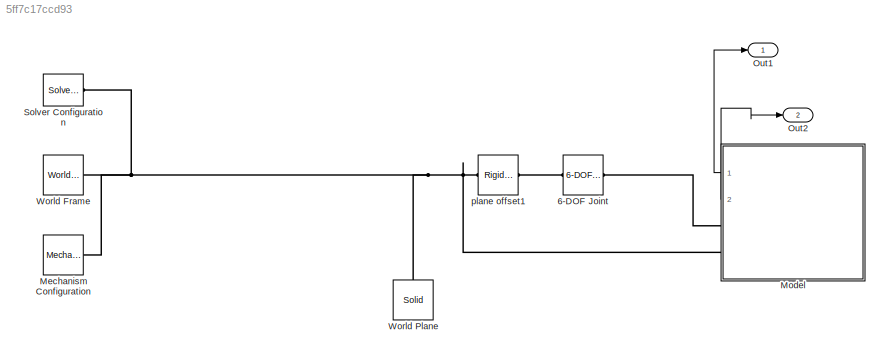
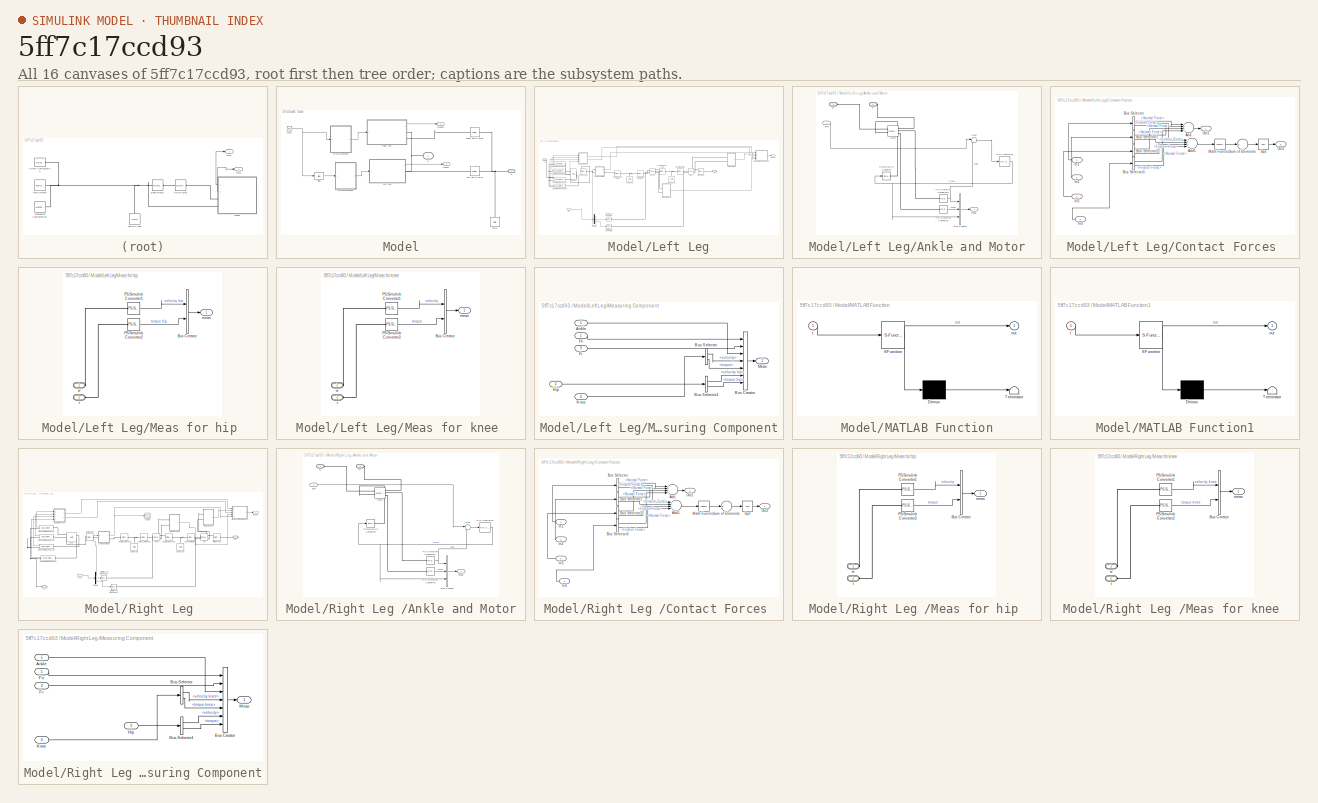
[diagram: thumbnail index - all 16 canvases of the model, root first then tree order]
MODEL slx_5ff7c17ccd93
KIND model
CONFIG AbsTol = auto
CONFIG EnableMultiTasking = on
CONFIG FixedStep = auto
CONFIG MaxStep = auto
CONFIG MinStep = auto
CONFIG RelTol = 1e-3
CONFIG SampleTimeConstraint = Unconstrained
CONFIG Solver = ode15s
CONFIG SolverName = ode15s
CONFIG StartTime = 0.0
CONFIG StopTime = 10.0
BLOCK [Reference] 6-DOF Joint  REF=sm_lib/Joints/6-DOF Joint
  Ports = [0, 0, 0, 0, 0, 1, 1]
  SourceBlock = sm_lib/Joints/6-DOF Joint
  SourceProductBaseCode = MS
  SourceProductName = Simscape Multibody
  SourceType = 6-DOF Joint
BLOCK [Reference] Mechanism Configuration  REF=sm_lib/Utilities/Mechanism
Configuration
  Ports = [0, 0, 0, 0, 0, 0, 1]
  SourceBlock = sm_lib/Utilities/Mechanism\nConfiguration
  SourceProductBaseCode = MS
  SourceProductName = Simscape Multibody
  SourceType = Mechanism\nConfiguration
BLOCK [SubSystem] Model
  Ports = [0, 2, 0, 0, 0, 0, 2]
  RequestExecContextInheritance = off
BLOCK [Bias] Model/Bias
  Bias = -curveData.gaitPeriod/2
  SaturateOnIntegerOverflow = off
BLOCK [Clock] Model/Clock
BLOCK [PMIOPort] Model/G
  Port = 2
  Side = Right
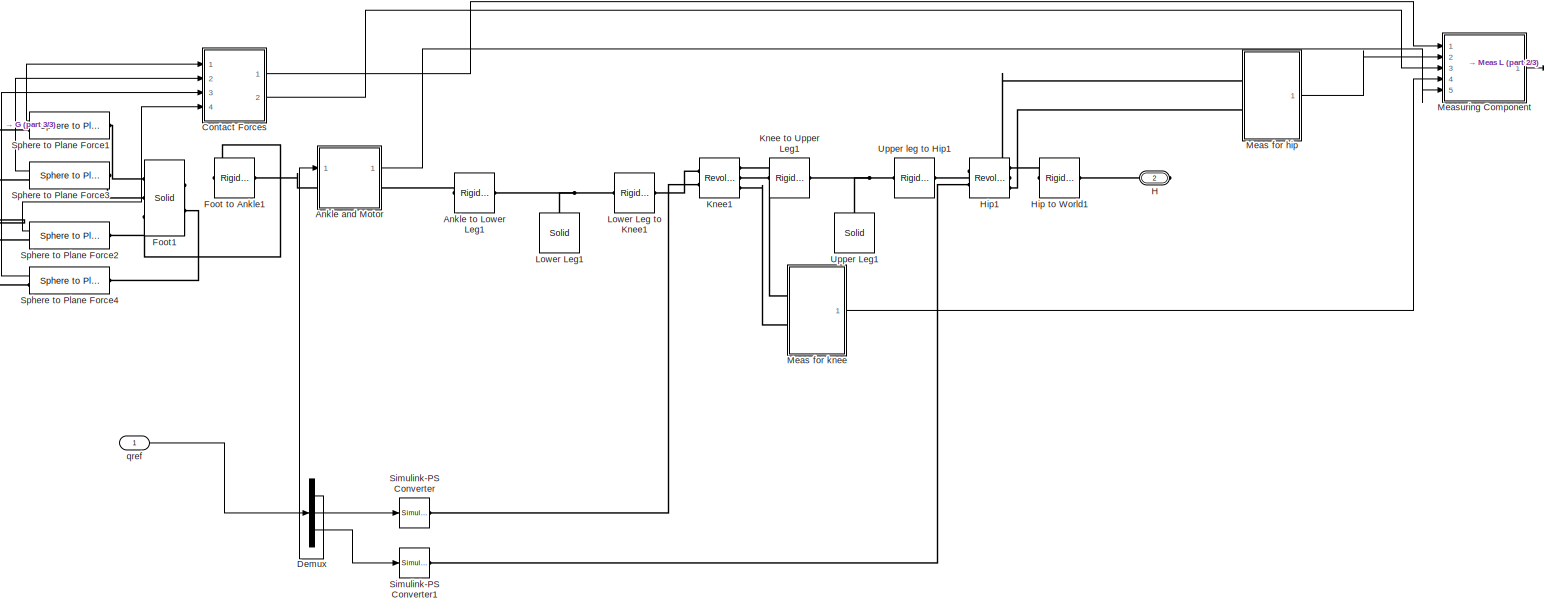
[diagram: Model/Left Leg - part 1/3, most of the canvas]
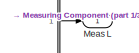
[diagram: Model/Left Leg - part 2/3, top right region]
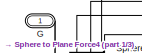
[diagram: Model/Left Leg - part 3/3, top left region]
BLOCK [SubSystem] Model/Left Leg
  Ports = [1, 1, 0, 0, 0, 0, 2]
  RequestExecContextInheritance = off
BLOCK [SubSystem] Model/Left Leg/Ankle and Motor
  Ports = [1, 1, 0, 0, 0, 1, 1]
  RequestExecContextInheritance = off
BLOCK [Reference] Model/Left Leg/Ankle and Motor/Ankle  REF=sm_lib/Joints/Revolute Joint
  Ports = [0, 0, 0, 0, 0, 2, 3]
  SourceBlock = sm_lib/Joints/Revolute Joint
  SourceProductBaseCode = MS
  SourceProductName = Simscape Multibody
  SourceType = Revolute Joint
BLOCK [PMIOPort] Model/Left Leg/Ankle and Motor/B
  Side = Left
BLOCK [BusCreator] Model/Left Leg/Ankle and Motor/Bus Creator
  DisplayOption = bar
  InheritFromInputs = on
  Inputs = 3
  Ports = [3, 1]
BLOCK [PMIOPort] Model/Left Leg/Ankle and Motor/F
  Port = 2
  Side = Right
BLOCK [Reference] Model/Left Leg/Ankle and Motor/PID Controller  REF=simulink/Continuous/PID Controller
  Ports = [1, 1]
  SourceBlock = simulink/Continuous/PID Controller
  SourceProductBaseCode = SL
  SourceProductName = Simulink
  SourceType = PID 1dof
BLOCK [Reference] Model/Left Leg/Ankle and Motor/PS-Simulink Converter  REF=nesl_utility/PS-Simulink
Converter
  Ports = [0, 1, 0, 0, 0, 1]
  SourceBlock = nesl_utility/PS-Simulink\nConverter
  SourceProductBaseCode = SS
  SourceProductName = Simscape
  SourceType = PS-Simulink\nConverter
BLOCK [Reference] Model/Left Leg/Ankle and Motor/PS-Simulink Converter1  REF=nesl_utility/PS-Simulink
Converter
  Ports = [0, 1, 0, 0, 0, 1]
  SourceBlock = nesl_utility/PS-Simulink\nConverter
  SourceProductBaseCode = SS
  SourceProductName = Simscape
  SourceType = PS-Simulink\nConverter
BLOCK [Reference] Model/Left Leg/Ankle and Motor/Simulink-PS Converter  REF=nesl_utility/Simulink-PS
Converter
  Ports = [1, 0, 0, 0, 0, 0, 1]
  SourceBlock = nesl_utility/Simulink-PS\nConverter
  SourceProductBaseCode = SS
  SourceProductName = Simscape
  SourceType = Simulink-PS\nConverter
BLOCK [Sum] Model/Left Leg/Ankle and Motor/Sum
  IconShape = round
  InputSameDT = off
  Inputs = |+-
  OutDataTypeStr = Inherit: Inherit via internal rule
  Ports = [2, 1]
  SaturateOnIntegerOverflow = off
BLOCK [Outport] Model/Left Leg/Ankle and Motor/meas
  IconDisplay = Port number
BLOCK [Inport] Model/Left Leg/Ankle and Motor/qref
  IconDisplay = Port number
BLOCK [Reference] Model/Left Leg/Ankle to Lower Leg1  REF=sm_lib/Frames and
Transforms/Rigid
Transform
  Ports = [0, 0, 0, 0, 0, 1, 1]
  SourceBlock = sm_lib/Frames and\nTransforms/Rigid\nTransform
  SourceProductBaseCode = MS
  SourceProductName = Simscape Multibody
  SourceType = Rigid\nTransform
BLOCK [SubSystem] Model/Left Leg/Contact Forces 
  Ports = [4, 2]
  RequestExecContextInheritance = off
BLOCK [Sum] Model/Left Leg/Contact Forces /Add
  InputSameDT = off
  Inputs = ++++
  OutDataTypeStr = Inherit: Inherit via internal rule
  Ports = [4, 1]
  SaturateOnIntegerOverflow = off
BLOCK [Sum] Model/Left Leg/Contact Forces /Add1
  InputSameDT = off
  Inputs = ++++
  OutDataTypeStr = Inherit: Inherit via internal rule
  Ports = [4, 1]
  SaturateOnIntegerOverflow = off
BLOCK [BusSelector] Model/Left Leg/Contact Forces /Bus Selector
  OutputAsBus = off
  OutputSignals = Normal Force,Friction Force
  Ports = [1, 2]
BLOCK [BusSelector] Model/Left Leg/Contact Forces /Bus Selector1
  OutputAsBus = off
  OutputSignals = Normal Force,Friction Force
  Ports = [1, 2]
BLOCK [BusSelector] Model/Left Leg/Contact Forces /Bus Selector2
  OutputAsBus = off
  OutputSignals = Normal Force,Friction Force
  Ports = [1, 2]
BLOCK [BusSelector] Model/Left Leg/Contact Forces /Bus Selector3
  OutputAsBus = off
  OutputSignals = Normal Force,Friction Force
  Ports = [1, 2]
BLOCK [Inport] Model/Left Leg/Contact Forces /In1
  IconDisplay = Port number
BLOCK [Inport] Model/Left Leg/Contact Forces /In2
  IconDisplay = Port number
  Port = 2
BLOCK [Inport] Model/Left Leg/Contact Forces /In3
  IconDisplay = Port number
  Port = 3
BLOCK [Inport] Model/Left Leg/Contact Forces /In4
  IconDisplay = Port number
  Port = 4
BLOCK [Math] Model/Left Leg/Contact Forces /Math Function
  Operator = square
  Ports = [1, 1]
BLOCK [Outport] Model/Left Leg/Contact Forces /Out1
  IconDisplay = Port number
BLOCK [Outport] Model/Left Leg/Contact Forces /Out2
  IconDisplay = Port number
  Port = 2
BLOCK [Sqrt] Model/Left Leg/Contact Forces /Sqrt
BLOCK [Sum] Model/Left Leg/Contact Forces /Sum of Elements
  InputSameDT = off
  Inputs = +
  OutDataTypeStr = Inherit: Inherit via internal rule
  Ports = [1, 1]
  SaturateOnIntegerOverflow = off
BLOCK [Demux] Model/Left Leg/Demux
  DisplayOption = bar
  Outputs = 3
  Ports = [1, 3]
BLOCK [Reference] Model/Left Leg/Foot to Ankle1  REF=sm_lib/Frames and
Transforms/Rigid
Transform
  Ports = [0, 0, 0, 0, 0, 1, 1]
  SourceBlock = sm_lib/Frames and\nTransforms/Rigid\nTransform
  SourceProductBaseCode = MS
  SourceProductName = Simscape Multibody
  SourceType = Rigid\nTransform
BLOCK [Reference] Model/Left Leg/Foot1  REF=sm_lib/Body Elements/Solid
  Ports = [0, 0, 0, 0, 0, 3, 2]
  SourceBlock = sm_lib/Body Elements/Solid
  SourceProductBaseCode = MS
  SourceProductName = Simscape Multibody
  SourceType = Solid
BLOCK [PMIOPort] Model/Left Leg/G
  Side = Right
BLOCK [PMIOPort] Model/Left Leg/H
  Port = 2
  Side = Right
BLOCK [Reference] Model/Left Leg/Hip to World1  REF=sm_lib/Frames and
Transforms/Rigid
Transform
  Ports = [0, 0, 0, 0, 0, 1, 1]
  SourceBlock = sm_lib/Frames and\nTransforms/Rigid\nTransform
  SourceProductBaseCode = MS
  SourceProductName = Simscape Multibody
  SourceType = Rigid\nTransform
BLOCK [Reference] Model/Left Leg/Hip1  REF=sm_lib/Joints/Revolute Joint
  Ports = [0, 0, 0, 0, 0, 2, 3]
  SourceBlock = sm_lib/Joints/Revolute Joint
  SourceProductBaseCode = MS
  SourceProductName = Simscape Multibody
  SourceType = Revolute Joint
BLOCK [Reference] Model/Left Leg/Knee to Upper Leg1  REF=sm_lib/Frames and
Transforms/Rigid
Transform
  Ports = [0, 0, 0, 0, 0, 1, 1]
  SourceBlock = sm_lib/Frames and\nTransforms/Rigid\nTransform
  SourceProductBaseCode = MS
  SourceProductName = Simscape Multibody
  SourceType = Rigid\nTransform
BLOCK [Reference] Model/Left Leg/Knee1  REF=sm_lib/Joints/Revolute Joint
  Ports = [0, 0, 0, 0, 0, 2, 3]
  SourceBlock = sm_lib/Joints/Revolute Joint
  SourceProductBaseCode = MS
  SourceProductName = Simscape Multibody
  SourceType = Revolute Joint
BLOCK [Reference] Model/Left Leg/Lower Leg to Knee1  REF=sm_lib/Frames and
Transforms/Rigid
Transform
  Ports = [0, 0, 0, 0, 0, 1, 1]
  SourceBlock = sm_lib/Frames and\nTransforms/Rigid\nTransform
  SourceProductBaseCode = MS
  SourceProductName = Simscape Multibody
  SourceType = Rigid\nTransform
BLOCK [Reference] Model/Left Leg/Lower Leg1  REF=sm_lib/Body Elements/Solid
  Ports = [0, 0, 0, 0, 0, 0, 1]
  SourceBlock = sm_lib/Body Elements/Solid
  SourceProductBaseCode = MS
  SourceProductName = Simscape Multibody
  SourceType = Solid
BLOCK [Outport] Model/Left Leg/Meas L 
  IconDisplay = Port number
BLOCK [SubSystem] Model/Left Leg/Meas for hip 
  Ports = [0, 1, 0, 0, 0, 2]
  RequestExecContextInheritance = off
BLOCK [BusCreator] Model/Left Leg/Meas for hip /Bus Creator
  DisplayOption = bar
  InheritFromInputs = on
  Inputs = 2
  Ports = [2, 1]
BLOCK [Reference] Model/Left Leg/Meas for hip /PS-Simulink Converter1  REF=nesl_utility/PS-Simulink
Converter
  Ports = [0, 1, 0, 0, 0, 1]
  SourceBlock = nesl_utility/PS-Simulink\nConverter
  SourceProductBaseCode = SS
  SourceProductName = Simscape
  SourceType = PS-Simulink\nConverter
BLOCK [Reference] Model/Left Leg/Meas for hip /PS-Simulink Converter2  REF=nesl_utility/PS-Simulink
Converter
  Ports = [0, 1, 0, 0, 0, 1]
  SourceBlock = nesl_utility/PS-Simulink\nConverter
  SourceProductBaseCode = SS
  SourceProductName = Simscape
  SourceType = PS-Simulink\nConverter
BLOCK [Outport] Model/Left Leg/Meas for hip /meas
  IconDisplay = Port number
BLOCK [PMIOPort] Model/Left Leg/Meas for hip /t
  Port = 2
  Side = Left
BLOCK [PMIOPort] Model/Left Leg/Meas for hip /w
  Side = Left
BLOCK [SubSystem] Model/Left Leg/Meas for knee 
  Ports = [0, 1, 0, 0, 0, 2]
  RequestExecContextInheritance = off
BLOCK [BusCreator] Model/Left Leg/Meas for knee /Bus Creator
  DisplayOption = bar
  InheritFromInputs = on
  Inputs = 2
  Ports = [2, 1]
BLOCK [Reference] Model/Left Leg/Meas for knee /PS-Simulink Converter1  REF=nesl_utility/PS-Simulink
Converter
  Ports = [0, 1, 0, 0, 0, 1]
  SourceBlock = nesl_utility/PS-Simulink\nConverter
  SourceProductBaseCode = SS
  SourceProductName = Simscape
  SourceType = PS-Simulink\nConverter
BLOCK [Reference] Model/Left Leg/Meas for knee /PS-Simulink Converter2  REF=nesl_utility/PS-Simulink
Converter
  Ports = [0, 1, 0, 0, 0, 1]
  SourceBlock = nesl_utility/PS-Simulink\nConverter
  SourceProductBaseCode = SS
  SourceProductName = Simscape
  SourceType = PS-Simulink\nConverter
BLOCK [Outport] Model/Left Leg/Meas for knee /meas
  IconDisplay = Port number
BLOCK [PMIOPort] Model/Left Leg/Meas for knee /t
  Port = 2
  Side = Left
BLOCK [PMIOPort] Model/Left Leg/Meas for knee /w
  Side = Left
BLOCK [SubSystem] Model/Left Leg/Measuring Component
  Ports = [5, 1]
  RequestExecContextInheritance = off
BLOCK [Inport] Model/Left Leg/Measuring Component/Ankle
  IconDisplay = Port number
  Port = 5
BLOCK [BusCreator] Model/Left Leg/Measuring Component/Bus Creator
  DisplayOption = bar
  InheritFromInputs = on
  Inputs = 7
  Ports = [7, 1]
BLOCK [BusSelector] Model/Left Leg/Measuring Component/Bus Selector
  OutputAsBus = off
  OutputSignals = velocity,torque
  Ports = [1, 2]
BLOCK [BusSelector] Model/Left Leg/Measuring Component/Bus Selector1
  OutputAsBus = off
  OutputSignals = velocity hip,torque hip
  Ports = [1, 2]
BLOCK [Inport] Model/Left Leg/Measuring Component/Fn
  IconDisplay = Port number
BLOCK [Inport] Model/Left Leg/Measuring Component/Fr
  IconDisplay = Port number
  Port = 3
BLOCK [Inport] Model/Left Leg/Measuring Component/Hip
  IconDisplay = Port number
  Port = 2
BLOCK [Inport] Model/Left Leg/Measuring Component/Knee
  IconDisplay = Port number
  Port = 4
BLOCK [Outport] Model/Left Leg/Measuring Component/Meas
  IconDisplay = Port number
BLOCK [Reference] Model/Left Leg/Simulink-PS Converter  REF=nesl_utility/Simulink-PS
Converter
  Ports = [1, 0, 0, 0, 0, 0, 1]
  SourceBlock = nesl_utility/Simulink-PS\nConverter
  SourceProductBaseCode = SS
  SourceProductName = Simscape
  SourceType = Simulink-PS\nConverter
BLOCK [Reference] Model/Left Leg/Simulink-PS Converter1  REF=nesl_utility/Simulink-PS
Converter
  Ports = [1, 0, 0, 0, 0, 0, 1]
  SourceBlock = nesl_utility/Simulink-PS\nConverter
  SourceProductBaseCode = SS
  SourceProductName = Simscape
  SourceType = Simulink-PS\nConverter
BLOCK [Reference] Model/Left Leg/Sphere to Plane Force1  REF=Contact_Forces_Lib/3D/Sphere to Plane Force
  Ports = [0, 1, 0, 0, 0, 1, 1]
  SourceBlock = Contact_Forces_Lib/3D/Sphere to Plane Force
  SourceProductName = Simscape Multibody Contact Forces Library
  SourceType = Sphere to Plane Force
BLOCK [Reference] Model/Left Leg/Sphere to Plane Force2  REF=Contact_Forces_Lib/3D/Sphere to Plane Force
  Ports = [0, 1, 0, 0, 0, 1, 1]
  SourceBlock = Contact_Forces_Lib/3D/Sphere to Plane Force
  SourceProductName = Simscape Multibody Contact Forces Library
  SourceType = Sphere to Plane Force
BLOCK [Reference] Model/Left Leg/Sphere to Plane Force3  REF=Contact_Forces_Lib/3D/Sphere to Plane Force
  Ports = [0, 1, 0, 0, 0, 1, 1]
  SourceBlock = Contact_Forces_Lib/3D/Sphere to Plane Force
  SourceProductName = Simscape Multibody Contact Forces Library
  SourceType = Sphere to Plane Force
BLOCK [Reference] Model/Left Leg/Sphere to Plane Force4  REF=Contact_Forces_Lib/3D/Sphere to Plane Force
  Ports = [0, 1, 0, 0, 0, 1, 1]
  SourceBlock = Contact_Forces_Lib/3D/Sphere to Plane Force
  SourceProductName = Simscape Multibody Contact Forces Library
  SourceType = Sphere to Plane Force
BLOCK [Reference] Model/Left Leg/Upper Leg1  REF=sm_lib/Body Elements/Solid
  Ports = [0, 0, 0, 0, 0, 0, 1]
  SourceBlock = sm_lib/Body Elements/Solid
  SourceProductBaseCode = MS
  SourceProductName = Simscape Multibody
  SourceType = Solid
BLOCK [Reference] Model/Left Leg/Upper leg to Hip1  REF=sm_lib/Frames and
Transforms/Rigid
Transform
  Ports = [0, 0, 0, 0, 0, 1, 1]
  SourceBlock = sm_lib/Frames and\nTransforms/Rigid\nTransform
  SourceProductBaseCode = MS
  SourceProductName = Simscape Multibody
  SourceType = Rigid\nTransform
BLOCK [Inport] Model/Left Leg/qref
  IconDisplay = Port number
BLOCK [Reference] Model/Left hip to torso  REF=sm_lib/Frames and
Transforms/Rigid
Transform
  Ports = [0, 0, 0, 0, 0, 1, 1]
  SourceBlock = sm_lib/Frames and\nTransforms/Rigid\nTransform
  SourceProductBaseCode = MS
  SourceProductName = Simscape Multibody
  SourceType = Rigid\nTransform
BLOCK [SubSystem] Model/MATLAB Function
  ErrorFcn = Stateflow.Translate.translate
  PermitHierarchicalResolution = ExplicitOnly
  Ports = [1, 1]
  RequestExecContextInheritance = off
  SFBlockType = MATLAB Function
  TreatAsAtomicUnit = on
BLOCK [Demux] Model/MATLAB Function/ Demux 
  Outputs = 1
  Ports = [1, 1]
BLOCK [S-Function] Model/MATLAB Function/ SFunction 
  EnableBusSupport = on
  FunctionName = sf_sfun
  Parameters = curveData
  PortCounts = [1 2]
  Ports = [1, 2]
  SFcnIsStateOwnerBlock = off
  SFunctionDeploymentMode = off
  Tag = Stateflow S-Function robotmodel140518 2
BLOCK [Terminator] Model/MATLAB Function/ Terminator 
BLOCK [Outport] Model/MATLAB Function/out
  IconDisplay = Port number
BLOCK [Inport] Model/MATLAB Function/t
  IconDisplay = Port number
BLOCK [SubSystem] Model/MATLAB Function1
  ErrorFcn = Stateflow.Translate.translate
  PermitHierarchicalResolution = ExplicitOnly
  Ports = [1, 1]
  RequestExecContextInheritance = off
  SFBlockType = MATLAB Function
  TreatAsAtomicUnit = on
BLOCK [Demux] Model/MATLAB Function1/ Demux 
  Outputs = 1
  Ports = [1, 1]
BLOCK [S-Function] Model/MATLAB Function1/ SFunction 
  EnableBusSupport = on
  FunctionName = sf_sfun
  Parameters = curveData
  PortCounts = [1 2]
  Ports = [1, 2]
  SFcnIsStateOwnerBlock = off
  SFunctionDeploymentMode = off
  Tag = Stateflow S-Function robotmodel140518 1
BLOCK [Terminator] Model/MATLAB Function1/ Terminator 
BLOCK [Outport] Model/MATLAB Function1/out
  IconDisplay = Port number
BLOCK [Inport] Model/MATLAB Function1/t
  IconDisplay = Port number
BLOCK [PMIOPort] Model/R
  Side = Right
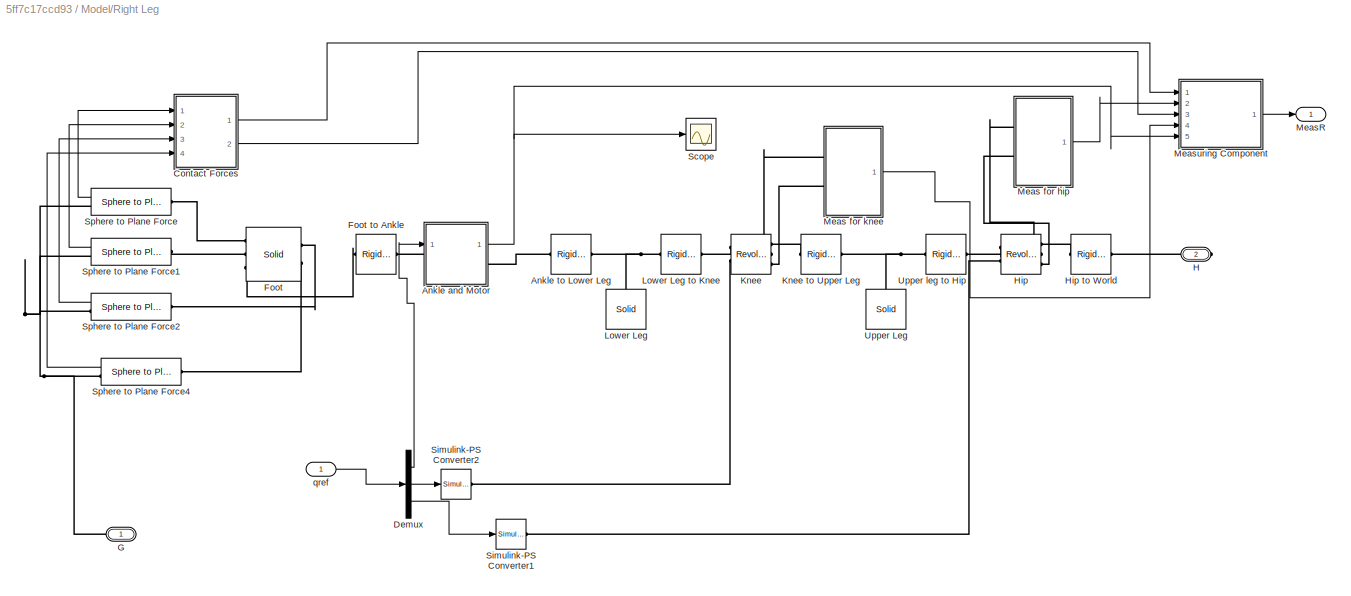
BLOCK [SubSystem] Model/Right Leg 
  Ports = [1, 1, 0, 0, 0, 0, 2]
  RequestExecContextInheritance = off
BLOCK [SubSystem] Model/Right Leg /Ankle and Motor
  Ports = [1, 1, 0, 0, 0, 1, 1]
  RequestExecContextInheritance = off
BLOCK [Reference] Model/Right Leg /Ankle and Motor/Ankle  REF=sm_lib/Joints/Revolute Joint
  Ports = [0, 0, 0, 0, 0, 2, 3]
  SourceBlock = sm_lib/Joints/Revolute Joint
  SourceProductBaseCode = MS
  SourceProductName = Simscape Multibody
  SourceType = Revolute Joint
BLOCK [PMIOPort] Model/Right Leg /Ankle and Motor/B
  Side = Left
BLOCK [BusCreator] Model/Right Leg /Ankle and Motor/Bus Creator
  DisplayOption = bar
  InheritFromInputs = on
  Inputs = 3
  Ports = [3, 1]
BLOCK [PMIOPort] Model/Right Leg /Ankle and Motor/F
  Port = 2
  Side = Right
BLOCK [Reference] Model/Right Leg /Ankle and Motor/PID Controller  REF=simulink/Continuous/PID Controller
  Ports = [1, 1]
  SourceBlock = simulink/Continuous/PID Controller
  SourceProductBaseCode = SL
  SourceProductName = Simulink
  SourceType = PID 1dof
BLOCK [Reference] Model/Right Leg /Ankle and Motor/PS-Simulink Converter  REF=nesl_utility/PS-Simulink
Converter
  Ports = [0, 1, 0, 0, 0, 1]
  SourceBlock = nesl_utility/PS-Simulink\nConverter
  SourceProductBaseCode = SS
  SourceProductName = Simscape
  SourceType = PS-Simulink\nConverter
BLOCK [Reference] Model/Right Leg /Ankle and Motor/PS-Simulink Converter1  REF=nesl_utility/PS-Simulink
Converter
  Ports = [0, 1, 0, 0, 0, 1]
  SourceBlock = nesl_utility/PS-Simulink\nConverter
  SourceProductBaseCode = SS
  SourceProductName = Simscape
  SourceType = PS-Simulink\nConverter
BLOCK [Reference] Model/Right Leg /Ankle and Motor/Simulink-PS Converter  REF=nesl_utility/Simulink-PS
Converter
  Ports = [1, 0, 0, 0, 0, 0, 1]
  SourceBlock = nesl_utility/Simulink-PS\nConverter
  SourceProductBaseCode = SS
  SourceProductName = Simscape
  SourceType = Simulink-PS\nConverter
BLOCK [Sum] Model/Right Leg /Ankle and Motor/Sum
  IconShape = round
  InputSameDT = off
  Inputs = |+-
  OutDataTypeStr = Inherit: Inherit via internal rule
  Ports = [2, 1]
  SaturateOnIntegerOverflow = off
BLOCK [Outport] Model/Right Leg /Ankle and Motor/meas
  IconDisplay = Port number
BLOCK [Inport] Model/Right Leg /Ankle and Motor/qref
  IconDisplay = Port number
BLOCK [Reference] Model/Right Leg /Ankle to Lower Leg  REF=sm_lib/Frames and
Transforms/Rigid
Transform
  Ports = [0, 0, 0, 0, 0, 1, 1]
  SourceBlock = sm_lib/Frames and\nTransforms/Rigid\nTransform
  SourceProductBaseCode = MS
  SourceProductName = Simscape Multibody
  SourceType = Rigid\nTransform
BLOCK [SubSystem] Model/Right Leg /Contact Forces 
  Ports = [4, 2]
  RequestExecContextInheritance = off
BLOCK [Sum] Model/Right Leg /Contact Forces /Add
  InputSameDT = off
  Inputs = ++++
  OutDataTypeStr = Inherit: Inherit via internal rule
  Ports = [4, 1]
  SaturateOnIntegerOverflow = off
BLOCK [Sum] Model/Right Leg /Contact Forces /Add1
  InputSameDT = off
  Inputs = ++++
  OutDataTypeStr = Inherit: Inherit via internal rule
  Ports = [4, 1]
  SaturateOnIntegerOverflow = off
BLOCK [BusSelector] Model/Right Leg /Contact Forces /Bus Selector
  OutputAsBus = off
  OutputSignals = Normal Force,Friction Force
  Ports = [1, 2]
BLOCK [BusSelector] Model/Right Leg /Contact Forces /Bus Selector1
  OutputAsBus = off
  OutputSignals = Normal Force,Friction Force
  Ports = [1, 2]
BLOCK [BusSelector] Model/Right Leg /Contact Forces /Bus Selector2
  OutputAsBus = off
  OutputSignals = Normal Force,Friction Force
  Ports = [1, 2]
BLOCK [BusSelector] Model/Right Leg /Contact Forces /Bus Selector3
  OutputAsBus = off
  OutputSignals = Normal Force,Friction Force
  Ports = [1, 2]
BLOCK [Inport] Model/Right Leg /Contact Forces /In1
  IconDisplay = Port number
BLOCK [Inport] Model/Right Leg /Contact Forces /In2
  IconDisplay = Port number
  Port = 2
BLOCK [Inport] Model/Right Leg /Contact Forces /In3
  IconDisplay = Port number
  Port = 3
BLOCK [Inport] Model/Right Leg /Contact Forces /In4
  IconDisplay = Port number
  Port = 4
BLOCK [Math] Model/Right Leg /Contact Forces /Math Function
  Operator = square
  Ports = [1, 1]
BLOCK [Outport] Model/Right Leg /Contact Forces /Out1
  IconDisplay = Port number
BLOCK [Outport] Model/Right Leg /Contact Forces /Out2
  IconDisplay = Port number
  Port = 2
BLOCK [Sqrt] Model/Right Leg /Contact Forces /Sqrt
BLOCK [Sum] Model/Right Leg /Contact Forces /Sum of Elements
  InputSameDT = off
  Inputs = +
  OutDataTypeStr = Inherit: Inherit via internal rule
  Ports = [1, 1]
  SaturateOnIntegerOverflow = off
BLOCK [Demux] Model/Right Leg /Demux
  DisplayOption = bar
  Outputs = 3
  Ports = [1, 3]
BLOCK [Reference] Model/Right Leg /Foot  REF=sm_lib/Body Elements/Solid
  Ports = [0, 0, 0, 0, 0, 3, 2]
  SourceBlock = sm_lib/Body Elements/Solid
  SourceProductBaseCode = MS
  SourceProductName = Simscape Multibody
  SourceType = Solid
BLOCK [Reference] Model/Right Leg /Foot to Ankle  REF=sm_lib/Frames and
Transforms/Rigid
Transform
  Ports = [0, 0, 0, 0, 0, 1, 1]
  SourceBlock = sm_lib/Frames and\nTransforms/Rigid\nTransform
  SourceProductBaseCode = MS
  SourceProductName = Simscape Multibody
  SourceType = Rigid\nTransform
BLOCK [PMIOPort] Model/Right Leg /G 
  Side = Right
BLOCK [PMIOPort] Model/Right Leg /H
  Port = 2
  Side = Right
BLOCK [Reference] Model/Right Leg /Hip  REF=sm_lib/Joints/Revolute Joint
  Ports = [0, 0, 0, 0, 0, 2, 3]
  SourceBlock = sm_lib/Joints/Revolute Joint
  SourceProductBaseCode = MS
  SourceProductName = Simscape Multibody
  SourceType = Revolute Joint
BLOCK [Reference] Model/Right Leg /Hip to World  REF=sm_lib/Frames and
Transforms/Rigid
Transform
  Ports = [0, 0, 0, 0, 0, 1, 1]
  SourceBlock = sm_lib/Frames and\nTransforms/Rigid\nTransform
  SourceProductBaseCode = MS
  SourceProductName = Simscape Multibody
  SourceType = Rigid\nTransform
BLOCK [Reference] Model/Right Leg /Knee  REF=sm_lib/Joints/Revolute Joint
  Ports = [0, 0, 0, 0, 0, 2, 3]
  SourceBlock = sm_lib/Joints/Revolute Joint
  SourceProductBaseCode = MS
  SourceProductName = Simscape Multibody
  SourceType = Revolute Joint
BLOCK [Reference] Model/Right Leg /Knee to Upper Leg  REF=sm_lib/Frames and
Transforms/Rigid
Transform
  Ports = [0, 0, 0, 0, 0, 1, 1]
  SourceBlock = sm_lib/Frames and\nTransforms/Rigid\nTransform
  SourceProductBaseCode = MS
  SourceProductName = Simscape Multibody
  SourceType = Rigid\nTransform
BLOCK [Reference] Model/Right Leg /Lower Leg  REF=sm_lib/Body Elements/Solid
  Ports = [0, 0, 0, 0, 0, 0, 1]
  SourceBlock = sm_lib/Body Elements/Solid
  SourceProductBaseCode = MS
  SourceProductName = Simscape Multibody
  SourceType = Solid
BLOCK [Reference] Model/Right Leg /Lower Leg to Knee  REF=sm_lib/Frames and
Transforms/Rigid
Transform
  Ports = [0, 0, 0, 0, 0, 1, 1]
  SourceBlock = sm_lib/Frames and\nTransforms/Rigid\nTransform
  SourceProductBaseCode = MS
  SourceProductName = Simscape Multibody
  SourceType = Rigid\nTransform
BLOCK [SubSystem] Model/Right Leg /Meas for hip 
  Ports = [0, 1, 0, 0, 0, 2]
  RequestExecContextInheritance = off
BLOCK [BusCreator] Model/Right Leg /Meas for hip /Bus Creator
  DisplayOption = bar
  InheritFromInputs = on
  Inputs = 2
  Ports = [2, 1]
BLOCK [Reference] Model/Right Leg /Meas for hip /PS-Simulink Converter1  REF=nesl_utility/PS-Simulink
Converter
  Ports = [0, 1, 0, 0, 0, 1]
  SourceBlock = nesl_utility/PS-Simulink\nConverter
  SourceProductBaseCode = SS
  SourceProductName = Simscape
  SourceType = PS-Simulink\nConverter
BLOCK [Reference] Model/Right Leg /Meas for hip /PS-Simulink Converter2  REF=nesl_utility/PS-Simulink
Converter
  Ports = [0, 1, 0, 0, 0, 1]
  SourceBlock = nesl_utility/PS-Simulink\nConverter
  SourceProductBaseCode = SS
  SourceProductName = Simscape
  SourceType = PS-Simulink\nConverter
BLOCK [Outport] Model/Right Leg /Meas for hip /meas
  IconDisplay = Port number
BLOCK [PMIOPort] Model/Right Leg /Meas for hip /t
  Port = 2
  Side = Left
BLOCK [PMIOPort] Model/Right Leg /Meas for hip /w
  Side = Left
BLOCK [SubSystem] Model/Right Leg /Meas for knee 
  Ports = [0, 1, 0, 0, 0, 2]
  RequestExecContextInheritance = off
BLOCK [BusCreator] Model/Right Leg /Meas for knee /Bus Creator
  DisplayOption = bar
  InheritFromInputs = on
  Inputs = 2
  Ports = [2, 1]
BLOCK [Reference] Model/Right Leg /Meas for knee /PS-Simulink Converter1  REF=nesl_utility/PS-Simulink
Converter
  Ports = [0, 1, 0, 0, 0, 1]
  SourceBlock = nesl_utility/PS-Simulink\nConverter
  SourceProductBaseCode = SS
  SourceProductName = Simscape
  SourceType = PS-Simulink\nConverter
BLOCK [Reference] Model/Right Leg /Meas for knee /PS-Simulink Converter2  REF=nesl_utility/PS-Simulink
Converter
  Ports = [0, 1, 0, 0, 0, 1]
  SourceBlock = nesl_utility/PS-Simulink\nConverter
  SourceProductBaseCode = SS
  SourceProductName = Simscape
  SourceType = PS-Simulink\nConverter
BLOCK [Outport] Model/Right Leg /Meas for knee /meas
  IconDisplay = Port number
BLOCK [PMIOPort] Model/Right Leg /Meas for knee /t
  Port = 2
  Side = Left
BLOCK [PMIOPort] Model/Right Leg /Meas for knee /w
  Side = Left
BLOCK [Outport] Model/Right Leg /MeasR
  IconDisplay = Port number
BLOCK [SubSystem] Model/Right Leg /Measuring Component
  Ports = [5, 1]
  RequestExecContextInheritance = off
BLOCK [Inport] Model/Right Leg /Measuring Component/Ankle
  IconDisplay = Port number
  Port = 5
BLOCK [BusCreator] Model/Right Leg /Measuring Component/Bus Creator
  DisplayOption = bar
  InheritFromInputs = on
  Inputs = 7
  Ports = [7, 1]
BLOCK [BusSelector] Model/Right Leg /Measuring Component/Bus Selector
  OutputAsBus = off
  OutputSignals = velocity knee,torque knee
  Ports = [1, 2]
BLOCK [BusSelector] Model/Right Leg /Measuring Component/Bus Selector1
  OutputAsBus = off
  OutputSignals = velocity,torque
  Ports = [1, 2]
BLOCK [Inport] Model/Right Leg /Measuring Component/Fn
  IconDisplay = Port number
BLOCK [Inport] Model/Right Leg /Measuring Component/Fr
  IconDisplay = Port number
  Port = 3
BLOCK [Inport] Model/Right Leg /Measuring Component/Hip
  IconDisplay = Port number
  Port = 2
BLOCK [Inport] Model/Right Leg /Measuring Component/Knee
  IconDisplay = Port number
  Port = 4
BLOCK [Outport] Model/Right Leg /Measuring Component/Meas
  IconDisplay = Port number
BLOCK [Scope] Model/Right Leg /Scope
  Floating = off
  NumInputPorts = 1
  Ports = [1]
  ScopeSpecificationString = Simulink.scopes.TimeScopeBlockCfg('CurrentConfiguration', extmgr.ConfigurationSet(extmgr.Configuration('Core','General UI',true),extmgr.Configuration('Core','Source UI',true),extmgr.Configuration('Sources','WiredSimulink',true),extmgr.Configuration('Visuals','Time Domain',true,'SerializedDisplays',{struct('MinYLimReal','-30.36502','MaxYLimReal','25.51414','YLabelReal','','MinYLimMag','0.00000','Ma...<+1383ch>
BLOCK [Reference] Model/Right Leg /Simulink-PS Converter1  REF=nesl_utility/Simulink-PS
Converter
  Ports = [1, 0, 0, 0, 0, 0, 1]
  SourceBlock = nesl_utility/Simulink-PS\nConverter
  SourceProductBaseCode = SS
  SourceProductName = Simscape
  SourceType = Simulink-PS\nConverter
BLOCK [Reference] Model/Right Leg /Simulink-PS Converter2  REF=nesl_utility/Simulink-PS
Converter
  Ports = [1, 0, 0, 0, 0, 0, 1]
  SourceBlock = nesl_utility/Simulink-PS\nConverter
  SourceProductBaseCode = SS
  SourceProductName = Simscape
  SourceType = Simulink-PS\nConverter
BLOCK [Reference] Model/Right Leg /Sphere to Plane Force  REF=Contact_Forces_Lib/3D/Sphere to Plane Force
  Ports = [0, 1, 0, 0, 0, 1, 1]
  SourceBlock = Contact_Forces_Lib/3D/Sphere to Plane Force
  SourceProductName = Simscape Multibody Contact Forces Library
  SourceType = Sphere to Plane Force
BLOCK [Reference] Model/Right Leg /Sphere to Plane Force1  REF=Contact_Forces_Lib/3D/Sphere to Plane Force
  Ports = [0, 1, 0, 0, 0, 1, 1]
  SourceBlock = Contact_Forces_Lib/3D/Sphere to Plane Force
  SourceProductName = Simscape Multibody Contact Forces Library
  SourceType = Sphere to Plane Force
BLOCK [Reference] Model/Right Leg /Sphere to Plane Force2  REF=Contact_Forces_Lib/3D/Sphere to Plane Force
  Ports = [0, 1, 0, 0, 0, 1, 1]
  SourceBlock = Contact_Forces_Lib/3D/Sphere to Plane Force
  SourceProductName = Simscape Multibody Contact Forces Library
  SourceType = Sphere to Plane Force
BLOCK [Reference] Model/Right Leg /Sphere to Plane Force4  REF=Contact_Forces_Lib/3D/Sphere to Plane Force
  Ports = [0, 1, 0, 0, 0, 1, 1]
  SourceBlock = Contact_Forces_Lib/3D/Sphere to Plane Force
  SourceProductName = Simscape Multibody Contact Forces Library
  SourceType = Sphere to Plane Force
BLOCK [Reference] Model/Right Leg /Upper Leg  REF=sm_lib/Body Elements/Solid
  Ports = [0, 0, 0, 0, 0, 0, 1]
  SourceBlock = sm_lib/Body Elements/Solid
  SourceProductBaseCode = MS
  SourceProductName = Simscape Multibody
  SourceType = Solid
BLOCK [Reference] Model/Right Leg /Upper leg to Hip  REF=sm_lib/Frames and
Transforms/Rigid
Transform
  Ports = [0, 0, 0, 0, 0, 1, 1]
  SourceBlock = sm_lib/Frames and\nTransforms/Rigid\nTransform
  SourceProductBaseCode = MS
  SourceProductName = Simscape Multibody
  SourceType = Rigid\nTransform
BLOCK [Inport] Model/Right Leg /qref
  IconDisplay = Port number
BLOCK [Reference] Model/Right hip to torso  REF=sm_lib/Frames and
Transforms/Rigid
Transform
  Ports = [0, 0, 0, 0, 0, 1, 1]
  SourceBlock = sm_lib/Frames and\nTransforms/Rigid\nTransform
  SourceProductBaseCode = MS
  SourceProductName = Simscape Multibody
  SourceType = Rigid\nTransform
BLOCK [Reference] Model/Torso  REF=sm_lib/Body Elements/Solid
  Ports = [0, 0, 0, 0, 0, 0, 1]
  SourceBlock = sm_lib/Body Elements/Solid
  SourceProductBaseCode = MS
  SourceProductName = Simscape Multibody
  SourceType = Solid
BLOCK [Outport] Model/measL
  IconDisplay = Port number
  Port = 2
BLOCK [Outport] Model/measR
  IconDisplay = Port number
BLOCK [Outport] Out1
  IconDisplay = Port number
BLOCK [Outport] Out2
  IconDisplay = Port number
  Port = 2
BLOCK [Reference] Solver Configuration  REF=nesl_utility/Solver
Configuration
  Ports = [0, 0, 0, 0, 0, 0, 1]
  SourceBlock = nesl_utility/Solver\nConfiguration
  SourceProductBaseCode = SS
  SourceProductName = Simscape
  SourceType = Solver\nConfiguration
BLOCK [Reference] World Frame  REF=sm_lib/Frames and
Transforms/World Frame
  Ports = [0, 0, 0, 0, 0, 0, 1]
  SourceBlock = sm_lib/Frames and\nTransforms/World Frame
  SourceProductBaseCode = MS
  SourceProductName = Simscape Multibody
  SourceType = World Frame
BLOCK [Reference] World Plane  REF=sm_lib/Body Elements/Solid
  Ports = [0, 0, 0, 0, 0, 0, 1]
  SourceBlock = sm_lib/Body Elements/Solid
  SourceProductBaseCode = MS
  SourceProductName = Simscape Multibody
  SourceType = Solid
BLOCK [Reference] plane offset1  REF=sm_lib/Frames and
Transforms/Rigid
Transform
  Ports = [0, 0, 0, 0, 0, 1, 1]
  SourceBlock = sm_lib/Frames and\nTransforms/Rigid\nTransform
  SourceProductBaseCode = MS
  SourceProductName = Simscape Multibody
  SourceType = Rigid\nTransform
LINE Model/Bias:1 -> Model/MATLAB Function1:1
NET Model/Clock:1 -> Model/Bias:1, Model/MATLAB Function:1
LINE Model/Left Leg/Ankle and Motor/Bus Creator:1 -> Model/Left Leg/Ankle and Motor/meas:1
NET Model/Left Leg/Ankle and Motor/PID Controller:1 -> Model/Left Leg/Ankle and Motor/Bus Creator:3, Model/Left Leg/Ankle and Motor/Simulink-PS Converter:1
NET Model/Left Leg/Ankle and Motor/PS-Simulink Converter1:1 -> Model/Left Leg/Ankle and Motor/Bus Creator:1, Model/Left Leg/Ankle and Motor/Sum:2
LINE Model/Left Leg/Ankle and Motor/PS-Simulink Converter:1 -> Model/Left Leg/Ankle and Motor/Bus Creator:2
LINE Model/Left Leg/Ankle and Motor/Sum:1 -> Model/Left Leg/Ankle and Motor/PID Controller:1
LINE Model/Left Leg/Ankle and Motor/qref:1 -> Model/Left Leg/Ankle and Motor/Sum:1
LINE Model/Left Leg/Ankle and Motor:1 -> Model/Left Leg/Measuring Component:5
LINE Model/Left Leg/Contact Forces /Add1:1 -> Model/Left Leg/Contact Forces /Math Function:1
LINE Model/Left Leg/Contact Forces /Add:1 -> Model/Left Leg/Contact Forces /Out1:1
LINE Model/Left Leg/Contact Forces /Bus Selector1:1 -> Model/Left Leg/Contact Forces /Add:2
LINE Model/Left Leg/Contact Forces /Bus Selector1:2 -> Model/Left Leg/Contact Forces /Add1:2
LINE Model/Left Leg/Contact Forces /Bus Selector2:1 -> Model/Left Leg/Contact Forces /Add:3
LINE Model/Left Leg/Contact Forces /Bus Selector2:2 -> Model/Left Leg/Contact Forces /Add1:3
LINE Model/Left Leg/Contact Forces /Bus Selector3:1 -> Model/Left Leg/Contact Forces /Add:4
LINE Model/Left Leg/Contact Forces /Bus Selector3:2 -> Model/Left Leg/Contact Forces /Add1:4
LINE Model/Left Leg/Contact Forces /Bus Selector:1 -> Model/Left Leg/Contact Forces /Add:1
LINE Model/Left Leg/Contact Forces /Bus Selector:2 -> Model/Left Leg/Contact Forces /Add1:1
LINE Model/Left Leg/Contact Forces /In1:1 -> Model/Left Leg/Contact Forces /Bus Selector:1
LINE Model/Left Leg/Contact Forces /In2:1 -> Model/Left Leg/Contact Forces /Bus Selector1:1
LINE Model/Left Leg/Contact Forces /In3:1 -> Model/Left Leg/Contact Forces /Bus Selector2:1
LINE Model/Left Leg/Contact Forces /In4:1 -> Model/Left Leg/Contact Forces /Bus Selector3:1
LINE Model/Left Leg/Contact Forces /Math Function:1 -> Model/Left Leg/Contact Forces /Sum of Elements:1
LINE Model/Left Leg/Contact Forces /Sqrt:1 -> Model/Left Leg/Contact Forces /Out2:1
LINE Model/Left Leg/Contact Forces /Sum of Elements:1 -> Model/Left Leg/Contact Forces /Sqrt:1
LINE Model/Left Leg/Contact Forces :1 -> Model/Left Leg/Measuring Component:1
LINE Model/Left Leg/Contact Forces :2 -> Model/Left Leg/Measuring Component:3
LINE Model/Left Leg/Demux:1 -> Model/Left Leg/Ankle and Motor:1
LINE Model/Left Leg/Demux:2 -> Model/Left Leg/Simulink-PS Converter:1
LINE Model/Left Leg/Demux:3 -> Model/Left Leg/Simulink-PS Converter1:1
LINE Model/Left Leg/Meas for hip /Bus Creator:1 -> Model/Left Leg/Meas for hip /meas:1
LINE Model/Left Leg/Meas for hip /PS-Simulink Converter1:1 -> Model/Left Leg/Meas for hip /Bus Creator:1
LINE Model/Left Leg/Meas for hip /PS-Simulink Converter2:1 -> Model/Left Leg/Meas for hip /Bus Creator:2
LINE Model/Left Leg/Meas for hip :1 -> Model/Left Leg/Measuring Component:2
LINE Model/Left Leg/Meas for knee /Bus Creator:1 -> Model/Left Leg/Meas for knee /meas:1
LINE Model/Left Leg/Meas for knee /PS-Simulink Converter1:1 -> Model/Left Leg/Meas for knee /Bus Creator:1
LINE Model/Left Leg/Meas for knee /PS-Simulink Converter2:1 -> Model/Left Leg/Meas for knee /Bus Creator:2
LINE Model/Left Leg/Meas for knee :1 -> Model/Left Leg/Measuring Component:4
LINE Model/Left Leg/Measuring Component/Ankle:1 -> Model/Left Leg/Measuring Component/Bus Creator:3
LINE Model/Left Leg/Measuring Component/Bus Creator:1 -> Model/Left Leg/Measuring Component/Meas:1
LINE Model/Left Leg/Measuring Component/Bus Selector1:1 -> Model/Left Leg/Measuring Component/Bus Creator:6
LINE Model/Left Leg/Measuring Component/Bus Selector1:2 -> Model/Left Leg/Measuring Component/Bus Creator:7
LINE Model/Left Leg/Measuring Component/Bus Selector:1 -> Model/Left Leg/Measuring Component/Bus Creator:4
LINE Model/Left Leg/Measuring Component/Bus Selector:2 -> Model/Left Leg/Measuring Component/Bus Creator:5
LINE Model/Left Leg/Measuring Component/Fn:1 -> Model/Left Leg/Measuring Component/Bus Creator:1
LINE Model/Left Leg/Measuring Component/Fr:1 -> Model/Left Leg/Measuring Component/Bus Creator:2
LINE Model/Left Leg/Measuring Component/Hip:1 -> Model/Left Leg/Measuring Component/Bus Selector1:1
LINE Model/Left Leg/Measuring Component/Knee:1 -> Model/Left Leg/Measuring Component/Bus Selector:1
LINE Model/Left Leg/Measuring Component:1 -> Model/Left Leg/Meas L :1
LINE Model/Left Leg/Sphere to Plane Force1:1 -> Model/Left Leg/Contact Forces :1
LINE Model/Left Leg/Sphere to Plane Force2:1 -> Model/Left Leg/Contact Forces :4
LINE Model/Left Leg/Sphere to Plane Force3:1 -> Model/Left Leg/Contact Forces :2
LINE Model/Left Leg/Sphere to Plane Force4:1 -> Model/Left Leg/Contact Forces :3
LINE Model/Left Leg/qref:1 -> Model/Left Leg/Demux:1
LINE Model/Left Leg:1 -> Model/measL:1
LINE Model/MATLAB Function1:1 -> Model/Left Leg:1
LINE Model/MATLAB Function:1 -> Model/Right Leg :1
LINE Model/Right Leg /Ankle and Motor/Bus Creator:1 -> Model/Right Leg /Ankle and Motor/meas:1
NET Model/Right Leg /Ankle and Motor/PID Controller:1 -> Model/Right Leg /Ankle and Motor/Bus Creator:3, Model/Right Leg /Ankle and Motor/Simulink-PS Converter:1
NET Model/Right Leg /Ankle and Motor/PS-Simulink Converter1:1 -> Model/Right Leg /Ankle and Motor/Bus Creator:1, Model/Right Leg /Ankle and Motor/Sum:2
LINE Model/Right Leg /Ankle and Motor/PS-Simulink Converter:1 -> Model/Right Leg /Ankle and Motor/Bus Creator:2
LINE Model/Right Leg /Ankle and Motor/Sum:1 -> Model/Right Leg /Ankle and Motor/PID Controller:1
LINE Model/Right Leg /Ankle and Motor/qref:1 -> Model/Right Leg /Ankle and Motor/Sum:1
NET Model/Right Leg /Ankle and Motor:1 -> Model/Right Leg /Measuring Component:5, Model/Right Leg /Scope:1
LINE Model/Right Leg /Contact Forces /Add1:1 -> Model/Right Leg /Contact Forces /Math Function:1
LINE Model/Right Leg /Contact Forces /Add:1 -> Model/Right Leg /Contact Forces /Out1:1
LINE Model/Right Leg /Contact Forces /Bus Selector1:1 -> Model/Right Leg /Contact Forces /Add:2
LINE Model/Right Leg /Contact Forces /Bus Selector1:2 -> Model/Right Leg /Contact Forces /Add1:2
LINE Model/Right Leg /Contact Forces /Bus Selector2:1 -> Model/Right Leg /Contact Forces /Add:3
LINE Model/Right Leg /Contact Forces /Bus Selector2:2 -> Model/Right Leg /Contact Forces /Add1:3
LINE Model/Right Leg /Contact Forces /Bus Selector3:1 -> Model/Right Leg /Contact Forces /Add:4
LINE Model/Right Leg /Contact Forces /Bus Selector3:2 -> Model/Right Leg /Contact Forces /Add1:4
LINE Model/Right Leg /Contact Forces /Bus Selector:1 -> Model/Right Leg /Contact Forces /Add:1
LINE Model/Right Leg /Contact Forces /Bus Selector:2 -> Model/Right Leg /Contact Forces /Add1:1
LINE Model/Right Leg /Contact Forces /In1:1 -> Model/Right Leg /Contact Forces /Bus Selector:1
LINE Model/Right Leg /Contact Forces /In2:1 -> Model/Right Leg /Contact Forces /Bus Selector1:1
LINE Model/Right Leg /Contact Forces /In3:1 -> Model/Right Leg /Contact Forces /Bus Selector2:1
LINE Model/Right Leg /Contact Forces /In4:1 -> Model/Right Leg /Contact Forces /Bus Selector3:1
LINE Model/Right Leg /Contact Forces /Math Function:1 -> Model/Right Leg /Contact Forces /Sum of Elements:1
LINE Model/Right Leg /Contact Forces /Sqrt:1 -> Model/Right Leg /Contact Forces /Out2:1
LINE Model/Right Leg /Contact Forces /Sum of Elements:1 -> Model/Right Leg /Contact Forces /Sqrt:1
LINE Model/Right Leg /Contact Forces :1 -> Model/Right Leg /Measuring Component:1
LINE Model/Right Leg /Contact Forces :2 -> Model/Right Leg /Measuring Component:3
LINE Model/Right Leg /Demux:1 -> Model/Right Leg /Ankle and Motor:1
LINE Model/Right Leg /Demux:2 -> Model/Right Leg /Simulink-PS Converter2:1
LINE Model/Right Leg /Demux:3 -> Model/Right Leg /Simulink-PS Converter1:1
LINE Model/Right Leg /Meas for hip /Bus Creator:1 -> Model/Right Leg /Meas for hip /meas:1
LINE Model/Right Leg /Meas for hip /PS-Simulink Converter1:1 -> Model/Right Leg /Meas for hip /Bus Creator:1
LINE Model/Right Leg /Meas for hip /PS-Simulink Converter2:1 -> Model/Right Leg /Meas for hip /Bus Creator:2
LINE Model/Right Leg /Meas for hip :1 -> Model/Right Leg /Measuring Component:2
LINE Model/Right Leg /Meas for knee /Bus Creator:1 -> Model/Right Leg /Meas for knee /meas:1
LINE Model/Right Leg /Meas for knee /PS-Simulink Converter1:1 -> Model/Right Leg /Meas for knee /Bus Creator:1
LINE Model/Right Leg /Meas for knee /PS-Simulink Converter2:1 -> Model/Right Leg /Meas for knee /Bus Creator:2
LINE Model/Right Leg /Meas for knee :1 -> Model/Right Leg /Measuring Component:4
LINE Model/Right Leg /Measuring Component/Ankle:1 -> Model/Right Leg /Measuring Component/Bus Creator:3
LINE Model/Right Leg /Measuring Component/Bus Creator:1 -> Model/Right Leg /Measuring Component/Meas:1
LINE Model/Right Leg /Measuring Component/Bus Selector1:1 -> Model/Right Leg /Measuring Component/Bus Creator:6
LINE Model/Right Leg /Measuring Component/Bus Selector1:2 -> Model/Right Leg /Measuring Component/Bus Creator:7
LINE Model/Right Leg /Measuring Component/Bus Selector:1 -> Model/Right Leg /Measuring Component/Bus Creator:4
LINE Model/Right Leg /Measuring Component/Bus Selector:2 -> Model/Right Leg /Measuring Component/Bus Creator:5
LINE Model/Right Leg /Measuring Component/Fn:1 -> Model/Right Leg /Measuring Component/Bus Creator:1
LINE Model/Right Leg /Measuring Component/Fr:1 -> Model/Right Leg /Measuring Component/Bus Creator:2
LINE Model/Right Leg /Measuring Component/Hip:1 -> Model/Right Leg /Measuring Component/Bus Selector1:1
LINE Model/Right Leg /Measuring Component/Knee:1 -> Model/Right Leg /Measuring Component/Bus Selector:1
LINE Model/Right Leg /Measuring Component:1 -> Model/Right Leg /MeasR:1
LINE Model/Right Leg /Sphere to Plane Force1:1 -> Model/Right Leg /Contact Forces :2
LINE Model/Right Leg /Sphere to Plane Force2:1 -> Model/Right Leg /Contact Forces :3
LINE Model/Right Leg /Sphere to Plane Force4:1 -> Model/Right Leg /Contact Forces :4
LINE Model/Right Leg /Sphere to Plane Force:1 -> Model/Right Leg /Contact Forces :1
LINE Model/Right Leg /qref:1 -> Model/Right Leg /Demux:1
LINE Model/Right Leg :1 -> Model/measR:1
LINE Model:1 -> Out1:1
LINE Model:2 -> Out2:1
PLINE 6-DOF Joint:LConn1 -- plane offset1:RConn1
PLINE 6-DOF Joint:RConn1 -- Model:RConn1
PNET net1: Mechanism Configuration:RConn1 -- Model:RConn2 -- Solver Configuration:RConn1 -- World Frame:RConn1 -- World Plane:RConn1 -- plane offset1:LConn1
PNET net2: Model/G:RConn1 -- Model/Left Leg:RConn1 -- Model/Right Leg :RConn1
PLINE Model/Left Leg/Ankle and Motor/Ankle:LConn1 -- Model/Left Leg/Ankle and Motor/B:RConn1
PLINE Model/Left Leg/Ankle and Motor/Ankle:LConn2 -- Model/Left Leg/Ankle and Motor/Simulink-PS Converter:RConn1
PLINE Model/Left Leg/Ankle and Motor/Ankle:RConn1 -- Model/Left Leg/Ankle and Motor/F:RConn1
PLINE Model/Left Leg/Ankle and Motor/Ankle:RConn2 -- Model/Left Leg/Ankle and Motor/PS-Simulink Converter1:LConn1
PLINE Model/Left Leg/Ankle and Motor/Ankle:RConn3 -- Model/Left Leg/Ankle and Motor/PS-Simulink Converter:LConn1
PLINE Model/Left Leg/Ankle and Motor:LConn1 -- Model/Left Leg/Foot to Ankle1:RConn1
PLINE Model/Left Leg/Ankle and Motor:RConn1 -- Model/Left Leg/Ankle to Lower Leg1:LConn1
PNET net3: Model/Left Leg/Ankle to Lower Leg1:RConn1 -- Model/Left Leg/Lower Leg to Knee1:LConn1 -- Model/Left Leg/Lower Leg1:RConn1
PLINE Model/Left Leg/Foot to Ankle1:LConn1 -- Model/Left Leg/Foot1:LConn3
PLINE Model/Left Leg/Foot1:LConn1 -- Model/Left Leg/Sphere to Plane Force1:LConn1
PLINE Model/Left Leg/Foot1:LConn2 -- Model/Left Leg/Sphere to Plane Force3:LConn1
PLINE Model/Left Leg/Foot1:RConn1 -- Model/Left Leg/Sphere to Plane Force2:LConn1
PLINE Model/Left Leg/Foot1:RConn2 -- Model/Left Leg/Sphere to Plane Force4:LConn1
PNET net4: Model/Left Leg/G:RConn1 -- Model/Left Leg/Sphere to Plane Force1:RConn1 -- Model/Left Leg/Sphere to Plane Force2:RConn1 -- Model/Left Leg/Sphere to Plane Force3:RConn1 -- Model/Left Leg/Sphere to Plane Force4:RConn1
PLINE Model/Left Leg/H:RConn1 -- Model/Left Leg/Hip to World1:RConn1
PLINE Model/Left Leg/Hip to World1:LConn1 -- Model/Left Leg/Hip1:RConn1
PLINE Model/Left Leg/Hip1:LConn1 -- Model/Left Leg/Upper leg to Hip1:RConn1
PLINE Model/Left Leg/Hip1:LConn2 -- Model/Left Leg/Simulink-PS Converter1:RConn1
PLINE Model/Left Leg/Hip1:RConn2 -- Model/Left Leg/Meas for hip :LConn1
PLINE Model/Left Leg/Hip1:RConn3 -- Model/Left Leg/Meas for hip :LConn2
PLINE Model/Left Leg/Knee to Upper Leg1:LConn1 -- Model/Left Leg/Knee1:RConn1
PNET net5: Model/Left Leg/Knee to Upper Leg1:RConn1 -- Model/Left Leg/Upper Leg1:RConn1 -- Model/Left Leg/Upper leg to Hip1:LConn1
PLINE Model/Left Leg/Knee1:LConn1 -- Model/Left Leg/Lower Leg to Knee1:RConn1
PLINE Model/Left Leg/Knee1:LConn2 -- Model/Left Leg/Simulink-PS Converter:RConn1
PLINE Model/Left Leg/Knee1:RConn2 -- Model/Left Leg/Meas for knee :LConn1
PLINE Model/Left Leg/Knee1:RConn3 -- Model/Left Leg/Meas for knee :LConn2
PLINE Model/Left Leg/Meas for hip /PS-Simulink Converter1:LConn1 -- Model/Left Leg/Meas for hip /w:RConn1
PLINE Model/Left Leg/Meas for hip /PS-Simulink Converter2:LConn1 -- Model/Left Leg/Meas for hip /t:RConn1
PLINE Model/Left Leg/Meas for knee /PS-Simulink Converter1:LConn1 -- Model/Left Leg/Meas for knee /w:RConn1
PLINE Model/Left Leg/Meas for knee /PS-Simulink Converter2:LConn1 -- Model/Left Leg/Meas for knee /t:RConn1
PLINE Model/Left Leg:RConn2 -- Model/Left hip to torso:RConn1
PNET net6: Model/Left hip to torso:LConn1 -- Model/R:RConn1 -- Model/Right hip to torso:LConn1 -- Model/Torso:RConn1
PLINE Model/Right Leg /Ankle and Motor/Ankle:LConn1 -- Model/Right Leg /Ankle and Motor/B:RConn1
PLINE Model/Right Leg /Ankle and Motor/Ankle:LConn2 -- Model/Right Leg /Ankle and Motor/Simulink-PS Converter:RConn1
PLINE Model/Right Leg /Ankle and Motor/Ankle:RConn1 -- Model/Right Leg /Ankle and Motor/F:RConn1
PLINE Model/Right Leg /Ankle and Motor/Ankle:RConn2 -- Model/Right Leg /Ankle and Motor/PS-Simulink Converter1:LConn1
PLINE Model/Right Leg /Ankle and Motor/Ankle:RConn3 -- Model/Right Leg /Ankle and Motor/PS-Simulink Converter:LConn1
PLINE Model/Right Leg /Ankle and Motor:LConn1 -- Model/Right Leg /Foot to Ankle:RConn1
PLINE Model/Right Leg /Ankle and Motor:RConn1 -- Model/Right Leg /Ankle to Lower Leg:LConn1
PNET net7: Model/Right Leg /Ankle to Lower Leg:RConn1 -- Model/Right Leg /Lower Leg to Knee:LConn1 -- Model/Right Leg /Lower Leg:RConn1
PLINE Model/Right Leg /Foot to Ankle:LConn1 -- Model/Right Leg /Foot:LConn3
PLINE Model/Right Leg /Foot:LConn1 -- Model/Right Leg /Sphere to Plane Force:LConn1
PLINE Model/Right Leg /Foot:LConn2 -- Model/Right Leg /Sphere to Plane Force1:LConn1
PLINE Model/Right Leg /Foot:RConn1 -- Model/Right Leg /Sphere to Plane Force2:LConn1
PLINE Model/Right Leg /Foot:RConn2 -- Model/Right Leg /Sphere to Plane Force4:LConn1
PNET net8: Model/Right Leg /G :RConn1 -- Model/Right Leg /Sphere to Plane Force1:RConn1 -- Model/Right Leg /Sphere to Plane Force2:RConn1 -- Model/Right Leg /Sphere to Plane Force4:RConn1 -- Model/Right Leg /Sphere to Plane Force:RConn1
PLINE Model/Right Leg /H:RConn1 -- Model/Right Leg /Hip to World:RConn1
PLINE Model/Right Leg /Hip to World:LConn1 -- Model/Right Leg /Hip:RConn1
PLINE Model/Right Leg /Hip:LConn1 -- Model/Right Leg /Upper leg to Hip:RConn1
PLINE Model/Right Leg /Hip:LConn2 -- Model/Right Leg /Simulink-PS Converter1:RConn1
PLINE Model/Right Leg /Hip:RConn2 -- Model/Right Leg /Meas for hip :LConn1
PLINE Model/Right Leg /Hip:RConn3 -- Model/Right Leg /Meas for hip :LConn2
PLINE Model/Right Leg /Knee to Upper Leg:LConn1 -- Model/Right Leg /Knee:RConn1
PNET net9: Model/Right Leg /Knee to Upper Leg:RConn1 -- Model/Right Leg /Upper Leg:RConn1 -- Model/Right Leg /Upper leg to Hip:LConn1
PLINE Model/Right Leg /Knee:LConn1 -- Model/Right Leg /Lower Leg to Knee:RConn1
PLINE Model/Right Leg /Knee:LConn2 -- Model/Right Leg /Simulink-PS Converter2:RConn1
PLINE Model/Right Leg /Knee:RConn2 -- Model/Right Leg /Meas for knee :LConn1
PLINE Model/Right Leg /Knee:RConn3 -- Model/Right Leg /Meas for knee :LConn2
PLINE Model/Right Leg /Meas for hip /PS-Simulink Converter1:LConn1 -- Model/Right Leg /Meas for hip /w:RConn1
PLINE Model/Right Leg /Meas for hip /PS-Simulink Converter2:LConn1 -- Model/Right Leg /Meas for hip /t:RConn1
PLINE Model/Right Leg /Meas for knee /PS-Simulink Converter1:LConn1 -- Model/Right Leg /Meas for knee /w:RConn1
PLINE Model/Right Leg /Meas for knee /PS-Simulink Converter2:LConn1 -- Model/Right Leg /Meas for knee /t:RConn1
PLINE Model/Right Leg :RConn2 -- Model/Right hip to torso:RConn1
note: NET lines group one-source signal fan-out (src -> all destinations, sorted); 1:1 wires keep LINE; PNET lines group multi-terminal physical nets as a canonical sorted terminal list (undirected conserving connections); 2-terminal nets keep the pairwise PLINE form
CHART Model/MATLAB Function1 states=1 transitions=1
  STATE_LABEL 'eML_blk_kernel()'
  STATE_LABEL 'SCRIPT:\nfunction out = smoothTraj(t,curveData)\n    out = evalSmoothTrajectory(curveData,t);\nend\n'
CHART Model/MATLAB Function states=1 transitions=1
  STATE_LABEL 'eML_blk_kernel()'
  STATE_LABEL 'SCRIPT:\nfunction out = smoothTraj(t,curveData)\n    out = evalSmoothTrajectory(curveData,t);\nend\n'
